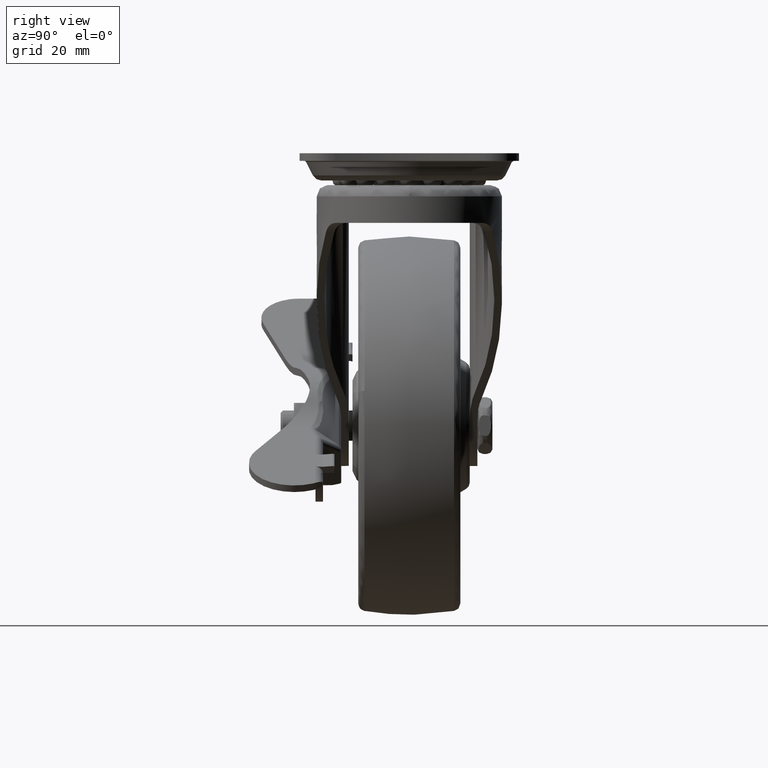
[diagram: clean part render]
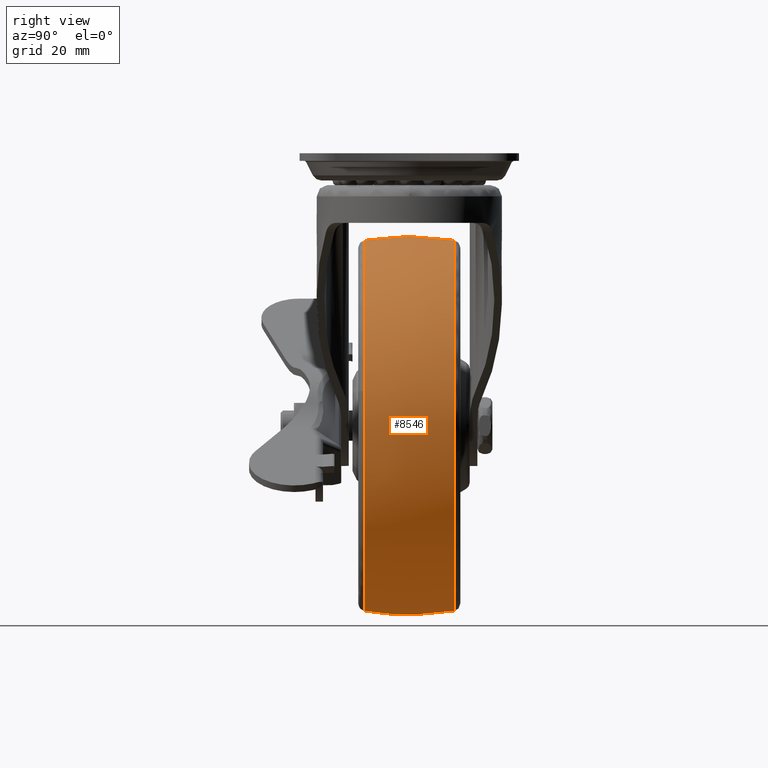
[diagram: same view with one face highlighted and labeled with its STEP entity id]
A machine part, right view. The second image highlights one B-rep face of the part: STEP entity #8546.
In plain terms, the highlighted face is a freeform B-spline surface patch.
Its self-contained STEP definition (entity closure, byte-faithful):
#8088=CARTESIAN_POINT('',(16.123932526321649,-11.838215256619501,-60.819868899651702));
#8089=VERTEX_POINT('',#8088);
#8100=CARTESIAN_POINT('',(-32.0,-11.838233890880700,-21.008288770716710));
#8101=VERTEX_POINT('',#8100);
#8102=CARTESIAN_POINT('',(-32.0,-11.838233890880700,-21.008288770716710));
#8103=CARTESIAN_POINT('',(-29.619184763803091,-11.838233890940099,-21.008161835103671));
#8104=CARTESIAN_POINT('',(-25.122118238568859,-11.838233737123350,-21.336787075046999));
#8105=CARTESIAN_POINT('',(-17.949827778257941,-11.838233019659400,-22.869628828661838));
#8106=CARTESIAN_POINT('',(-11.410308559770190,-11.838231861288680,-25.344455653658919));
#8107=CARTESIAN_POINT('',(-5.088591165053131,-11.838230205081690,-28.882895644407469));
#8108=CARTESIAN_POINT('',(0.633189689525816,-11.838228189258491,-33.189646086615411));
#8109=CARTESIAN_POINT('',(5.494194285720369,-11.838225837831050,-38.213404492334540));
#8110=CARTESIAN_POINT('',(9.700595301894166,-11.838223129296081,-44.000115788534060));
#8111=CARTESIAN_POINT('',(13.556078941229799,-11.838219775164610,-51.166121668634702));
#8112=CARTESIAN_POINT('',(15.430706597005759,-11.838216959475609,-57.181765403239922));
#8113=CARTESIAN_POINT('',(16.123932526321649,-11.838215256619501,-60.819868899651702));
#8114=B_SPLINE_CURVE_WITH_KNOTS('',3,(#8102,#8103,#8104,#8105,#8106,#8107,#8108,#8109,#8110,#8111,#8112,#8113),.UNSPECIFIED.,.F.,.U.,(4,1,1,1,1,1,1,1,1,4),(0.000000107710775,7.142433306696454,13.491359413798550,21.956563025939630,28.040879352111560,35.183345193590263,43.383987906265759,48.939264703763833,56.610856519450643,67.721361440620655),.UNSPECIFIED.);
#8115=EDGE_CURVE('',#8101,#8089,#8114,.T.);
#8117=CARTESIAN_POINT('',(-80.664045225780853,-11.838193128552490,-75.656779717032805));
#8118=VERTEX_POINT('',#8117);
#8119=CARTESIAN_POINT('',(-80.664045225780853,-11.838193128552490,-75.656779717032805));
#8120=CARTESIAN_POINT('',(-80.875242348352472,-11.838193806082870,-73.840080448965523));
#8121=CARTESIAN_POINT('',(-81.132539255926631,-11.838195500649171,-69.537605023761799));
#8122=CARTESIAN_POINT('',(-80.612532678428053,-11.838198692828160,-62.327389373035579));
#8123=CARTESIAN_POINT('',(-78.915151735993874,-11.838202248227160,-55.292517267360097));
#8124=CARTESIAN_POINT('',(-76.105686791335245,-11.838206201140890,-48.292411428705307));
#8125=CARTESIAN_POINT('',(-72.867896341002265,-11.838209735146730,-42.680686279276948));
#8126=CARTESIAN_POINT('',(-68.546148908598269,-11.838213629100720,-37.168980158243720));
#8127=CARTESIAN_POINT('',(-63.472043979905877,-11.838217586315160,-32.175181809511713));
#8128=CARTESIAN_POINT('',(-57.829782295864419,-11.838221337966100,-28.181447023764939));
#8129=CARTESIAN_POINT('',(-51.994287574135818,-11.838224756209620,-25.161222840096599));
#8130=CARTESIAN_POINT('',(-46.356773699768119,-11.838227742601701,-23.002772252345149));
#8131=CARTESIAN_POINT('',(-39.530896310538687,-11.838230937875100,-21.400444847661529));
#8132=CARTESIAN_POINT('',(-34.582044847686703,-11.838232934421740,-21.008110156978379));
#8133=CARTESIAN_POINT('',(-32.0,-11.838233890880700,-21.008288770716710));
#8134=B_SPLINE_CURVE_WITH_KNOTS('',3,(#8119,#8120,#8121,#8122,#8123,#8124,#8125,#8126,#8127,#8128,#8129,#8130,#8131,#8132,#8133),.UNSPECIFIED.,.F.,.U.,(4,1,1,1,1,1,1,1,1,1,1,1,4),(0.000000162141305,5.486821297713973,12.910234084080731,21.624667609503749,27.111551182365350,35.503185759204527,40.990116789369857,48.090663688883971,56.805074535718788,61.646426287595453,67.778827943044774,74.879463284102627,82.625578288287073),.UNSPECIFIED.);
#8135=EDGE_CURVE('',#8118,#8101,#8134,.T.);
#8137=CARTESIAN_POINT('',(-32.0,-11.838188120240501,-118.991719083000500));
#8138=VERTEX_POINT('',#8137);
#8154=CARTESIAN_POINT('',(-14.561337316346631,-11.838189308150540,-115.782980791147300));
#8155=VERTEX_POINT('',#8154);
#8156=CARTESIAN_POINT('',(-14.561337316346631,-11.838189308150540,-115.782980791147300));
#8157=CARTESIAN_POINT('',(-16.991144316425249,-11.838188920580960,-116.708679521122510));
#8158=CARTESIAN_POINT('',(-22.713944837562050,-11.838188243524000,-118.380762685201600));
#8159=CARTESIAN_POINT('',(-28.656895503161529,-11.838188062316799,-118.992279018558410));
#8160=CARTESIAN_POINT('',(-32.0,-11.838188120240501,-118.991719083000500));
#8161=B_SPLINE_CURVE_WITH_KNOTS('',3,(#8156,#8157,#8158,#8159,#8160),.UNSPECIFIED.,.F.,.U.,(4,1,4),(7.410815E-009,7.800496847856916,17.829667537271149),.UNSPECIFIED.);
#8162=EDGE_CURVE('',#8155,#8138,#8161,.T.);
#8211=CARTESIAN_POINT('',(16.123932526321649,-11.838215256619501,-60.819868899651702));
#8212=CARTESIAN_POINT('',(16.641213143206450,-11.838213981296430,-63.530329739636073));
#8213=CARTESIAN_POINT('',(17.076746083101490,-11.838212015728089,-67.706149890815752));
#8214=CARTESIAN_POINT('',(16.920148329825640,-11.838208953365360,-74.208333031753455));
#8215=CARTESIAN_POINT('',(16.168444922449080,-11.838206412932960,-79.599525575667883));
#8216=CARTESIAN_POINT('',(14.511264494790970,-11.838203489773351,-85.799357348627595));
#8217=CARTESIAN_POINT('',(11.786158106333129,-11.838200330568920,-92.495620991566284));
#8218=CARTESIAN_POINT('',(7.777692000299152,-11.838197281119889,-98.953042483066923));
#8219=CARTESIAN_POINT('',(2.407010776692997,-11.838194348413071,-105.156431754939900));
#8220=CARTESIAN_POINT('',(-4.555858498248170,-11.838191561162571,-111.043778824357300));
#8221=CARTESIAN_POINT('',(-10.817733492182770,-11.838189987101190,-114.358089828166800));
#8222=CARTESIAN_POINT('',(-14.561337316346631,-11.838189308150540,-115.782980791147300));
#8223=B_SPLINE_CURVE_WITH_KNOTS('',3,(#8211,#8212,#8213,#8214,#8215,#8216,#8217,#8218,#8219,#8220,#8221,#8222),.UNSPECIFIED.,.F.,.U.,(4,1,1,1,1,1,1,1,1,4),(0.000000112842500,8.278097203272424,12.550670171656281,19.493618371295220,24.567295591202200,31.777328306437411,41.123481275572118,47.265315766097054,56.344567209697338,68.361166547059426),.UNSPECIFIED.);
#8224=EDGE_CURVE('',#8089,#8155,#8223,.T.);
#8259=CARTESIAN_POINT('',(-19.096822078423319,11.838234922476101,-22.738013914364810));
#8260=VERTEX_POINT('',#8259);
#8261=CARTESIAN_POINT('',(-32.0,11.838215793195610,-118.991711150159300));
#8262=VERTEX_POINT('',#8261);
#8263=CARTESIAN_POINT('',(-19.096822078423319,11.838234922476101,-22.738013914364810));
#8264=CARTESIAN_POINT('',(-16.177397573735039,11.838234763757169,-23.534734861174108));
#8265=CARTESIAN_POINT('',(-10.228380245450261,11.838234318983821,-25.768772945522329));
#8266=CARTESIAN_POINT('',(-3.168805072129722,11.838233452302040,-30.124865305360981));
#8267=CARTESIAN_POINT('',(1.972966893548354,11.838232567851639,-34.571570051235938));
#8268=CARTESIAN_POINT('',(6.045834669580466,11.838231700474971,-38.933046246160458));
#8269=CARTESIAN_POINT('',(9.502133957799368,11.838230753148411,-43.697165088088433));
#8270=CARTESIAN_POINT('',(12.428872368217601,11.838229676873580,-49.110400301771840));
#8271=CARTESIAN_POINT('',(14.421386042362750,11.838228694679900,-54.050871652740277));
#8272=CARTESIAN_POINT('',(16.001508019819461,11.838227588474430,-59.615548729198252));
#8273=CARTESIAN_POINT('',(16.929521635565941,11.838226415130160,-65.518431130533244));
#8274=CARTESIAN_POINT('',(17.090224036557512,11.838225082435860,-72.223543724418505));
#8275=CARTESIAN_POINT('',(16.297416936687871,11.838223665834899,-79.351414600852991));
#8276=CARTESIAN_POINT('',(14.493855982723920,11.838222360868290,-85.918264585315640));
#8277=CARTESIAN_POINT('',(12.082156546562651,11.838221236321980,-91.577739767012403));
#8278=CARTESIAN_POINT('',(9.230177295614247,11.838220215285171,-96.716706152201823));
#8279=CARTESIAN_POINT('',(5.625619392419234,11.838219245109510,-101.600248620895000));
#8280=CARTESIAN_POINT('',(0.649808379800754,11.838218221299639,-106.754508738124500));
#8281=CARTESIAN_POINT('',(-4.586661875500887,11.838217414505490,-110.817057977324000));
#8282=CARTESIAN_POINT('',(-10.186899377236800,11.838216787094710,-113.977301334847790));
#8283=CARTESIAN_POINT('',(-15.673929515470221,11.838216321130499,-116.325185254120500));
#8284=CARTESIAN_POINT('',(-22.829951163508159,11.838215911825960,-118.389048104174290));
#8285=CARTESIAN_POINT('',(-28.606977418145110,11.838215792664100,-118.992239924959090));
#8286=CARTESIAN_POINT('',(-32.0,11.838215793195610,-118.991711150159300));
#8287=B_SPLINE_CURVE_WITH_KNOTS('',3,(#8263,#8264,#8265,#8266,#8267,#8268,#8269,#8270,#8271,#8272,#8273,#8274,#8275,#8276,#8277,#8278,#8279,#8280,#8281,#8282,#8283,#8284,#8285,#8286),.UNSPECIFIED.,.F.,.U.,(4,1,1,1,1,1,1,1,1,1,1,1,1,1,1,1,1,1,1,1,1,4),(0.000000384912710,9.078531705369699,18.982317682899460,24.759657950980749,29.436487442613650,36.864392269128437,42.366546584020497,47.868696759719647,52.820645729330472,59.698424636871863,65.750789954099403,72.903408196545442,81.156659821362311,86.108576315956043,91.335559129146191,98.763500116278891,104.265681159710700,112.794056812786910,118.571288243996190,123.523232526141900,130.675998341231410,140.854963548833690),.UNSPECIFIED.);
#8288=EDGE_CURVE('',#8260,#8262,#8287,.T.);
#8290=CARTESIAN_POINT('',(-80.664041683705534,11.838201460569289,-75.656779420158955));
#8291=VERTEX_POINT('',#8290);
#8308=CARTESIAN_POINT('',(-80.435742125410371,11.838205887466909,-62.640191114683802));
#8309=VERTEX_POINT('',#8308);
#8310=CARTESIAN_POINT('',(-80.664041683705534,11.838201460569289,-75.656779420158955));
#8311=CARTESIAN_POINT('',(-81.167643267970050,11.838202839128661,-71.333493055989109));
#8312=CARTESIAN_POINT('',(-81.090194727712230,11.838204332333500,-66.943169470343406));
#8313=CARTESIAN_POINT('',(-80.435742125410371,11.838205887466909,-62.640191114683802));
#8314=B_SPLINE_CURVE_WITH_KNOTS('',3,(#8310,#8311,#8312,#8313),.UNSPECIFIED.,.F.,.U.,(4,4),(3.940766E-009,13.057238801090090),.UNSPECIFIED.);
#8315=EDGE_CURVE('',#8291,#8309,#8314,.T.);
#8412=CARTESIAN_POINT('',(-32.0,11.838235254025140,-21.008293250591912));
#8413=VERTEX_POINT('',#8412);
#8414=CARTESIAN_POINT('',(-32.0,11.838235254025140,-21.008293250591912));
#8415=CARTESIAN_POINT('',(-27.647479507120480,11.838235254222120,-21.007266199678220));
#8416=CARTESIAN_POINT('',(-23.295453455901921,11.838235142322180,-21.591056947276801));
#8417=CARTESIAN_POINT('',(-19.096822078423319,11.838234922476101,-22.738013914364810));
#8418=B_SPLINE_CURVE_WITH_KNOTS('',3,(#8414,#8415,#8416,#8417),.UNSPECIFIED.,.F.,.U.,(4,4),(3.940174E-009,13.057248117228360),.UNSPECIFIED.);
#8419=EDGE_CURVE('',#8413,#8260,#8418,.T.);
#8448=CARTESIAN_POINT('',(-80.435742125410371,11.838205887466909,-62.640191114683802));
#8449=CARTESIAN_POINT('',(-79.851543222067477,11.838207407358871,-58.789059748771592));
#8450=CARTESIAN_POINT('',(-78.170663934689387,11.838210035042369,-52.722934895183883));
#8451=CARTESIAN_POINT('',(-74.692973277973692,11.838213537370351,-45.729401963690172));
#8452=CARTESIAN_POINT('',(-70.713402029518335,11.838216870960441,-39.663480332294981));
#8453=CARTESIAN_POINT('',(-65.609891515889146,11.838220421542610,-33.965855910539332));
#8454=CARTESIAN_POINT('',(-58.903208034368262,11.838224272525460,-28.819747171400930));
#8455=CARTESIAN_POINT('',(-52.045955710634722,11.838227680052150,-25.080529751853490));
#8456=CARTESIAN_POINT('',(-46.226886501769393,11.838230192609540,-22.996487335185488));
#8457=CARTESIAN_POINT('',(-39.427723273095111,11.838232828441519,-21.423067505682521));
#8458=CARTESIAN_POINT('',(-35.170467353777909,11.838234280464031,-21.007841531252179));
#8459=CARTESIAN_POINT('',(-32.0,11.838235254025140,-21.008293250591912));
#8460=B_SPLINE_CURVE_WITH_KNOTS('',3,(#8448,#8449,#8450,#8451,#8452,#8453,#8454,#8455,#8456,#8457,#8458,#8459),.UNSPECIFIED.,.F.,.U.,(4,1,1,1,1,1,1,1,1,4),(0.000000115222619,11.685279695341560,18.750842130785831,23.370633700476681,33.425417052680373,41.577934175868243,48.643448561277140,56.796003800376852,60.057030123494663,69.568309824712117),.UNSPECIFIED.);
#8461=EDGE_CURVE('',#8309,#8413,#8460,.T.);
#8466=CARTESIAN_POINT('',(-80.448962351836286,13.037387606463096,-75.631788331223788));
#8467=CARTESIAN_POINT('',(-81.665582081654208,6.576226944414428,-75.773210241318978));
#8468=CARTESIAN_POINT('',(-81.665582081654222,-9.184548E-015,-75.773210241318964));
#8469=CARTESIAN_POINT('',(-81.665582081654208,-6.576226944414442,-75.773210241318978));
#8470=CARTESIAN_POINT('',(-80.448962351836286,-13.037387606463108,-75.631788331223788));
#8471=CARTESIAN_POINT('',(-80.775188290537159,13.037387606463099,-72.825342617579750));
#8472=CARTESIAN_POINT('',(-81.999999999999972,6.576226944414425,-72.896290836183070));
#8473=CARTESIAN_POINT('',(-81.999999999999986,-9.184548E-015,-72.896290836183084));
#8474=CARTESIAN_POINT('',(-81.999999999999972,-6.576226944414440,-72.896290836183070));
#8475=CARTESIAN_POINT('',(-80.775188290537159,-13.037387606463110,-72.825342617579750));
#8476=CARTESIAN_POINT('',(-80.775188290537173,13.037387606463101,-69.999999999999986));
#8477=CARTESIAN_POINT('',(-82.0,6.576226944414427,-70.0));
#8478=CARTESIAN_POINT('',(-82.0,-9.184548E-015,-70.0));
#8479=CARTESIAN_POINT('',(-82.0,-6.576226944414442,-70.0));
#8480=CARTESIAN_POINT('',(-80.775188290537173,-13.037387606463112,-69.999999999999986));
#8481=CARTESIAN_POINT('',(-80.775188290537159,13.037387606463097,-21.224811709462820));
#8482=CARTESIAN_POINT('',(-82.000000000000028,6.576226944414428,-19.999999999999996));
#8483=CARTESIAN_POINT('',(-82.0,-9.184548E-015,-19.999999999999996));
#8484=CARTESIAN_POINT('',(-82.000000000000028,-6.576226944414444,-19.999999999999996));
#8485=CARTESIAN_POINT('',(-80.775188290537159,-13.037387606463110,-21.224811709462820));
#8486=CARTESIAN_POINT('',(-32.0,13.037387606463101,-21.224811709462823));
#8487=CARTESIAN_POINT('',(-31.999999999999996,6.576226944414427,-20.0));
#8488=CARTESIAN_POINT('',(-32.0,-9.184548E-015,-20.0));
#8489=CARTESIAN_POINT('',(-31.999999999999996,-6.576226944414442,-20.0));
#8490=CARTESIAN_POINT('',(-32.0,-13.037387606463112,-21.224811709462823));
#8491=CARTESIAN_POINT('',(16.775188290537184,13.037387606463097,-21.224811709462820));
#8492=CARTESIAN_POINT('',(18.0,6.576226944414428,-19.999999999999996));
#8493=CARTESIAN_POINT('',(18.000000000000007,-9.184548E-015,-19.999999999999996));
#8494=CARTESIAN_POINT('',(18.0,-6.576226944414444,-19.999999999999996));
#8495=CARTESIAN_POINT('',(16.775188290537184,-13.037387606463110,-21.224811709462820));
#8496=CARTESIAN_POINT('',(16.775188290537191,13.037387606463101,-69.999999999999986));
#8497=CARTESIAN_POINT('',(18.000000000000007,6.576226944414427,-70.0));
#8498=CARTESIAN_POINT('',(18.0,-9.184548E-015,-70.0));
#8499=CARTESIAN_POINT('',(18.000000000000007,-6.576226944414442,-70.0));
#8500=CARTESIAN_POINT('',(16.775188290537191,-13.037387606463112,-69.999999999999986));
#8501=CARTESIAN_POINT('',(16.775188290537184,13.037387606463097,-118.775188290537170));
#8502=CARTESIAN_POINT('',(18.0,6.576226944414428,-120.0));
#8503=CARTESIAN_POINT('',(18.000000000000007,-9.184548E-015,-120.0));
#8504=CARTESIAN_POINT('',(18.0,-6.576226944414444,-120.0));
#8505=CARTESIAN_POINT('',(16.775188290537184,-13.037387606463110,-118.775188290537200));
#8506=CARTESIAN_POINT('',(-32.0,13.037387606463101,-118.775188290537140));
#8507=CARTESIAN_POINT('',(-31.999999999999996,6.576226944414427,-120.0));
#8508=CARTESIAN_POINT('',(-32.0,-9.184548E-015,-120.0));
#8509=CARTESIAN_POINT('',(-31.999999999999996,-6.576226944414442,-120.0));
#8510=CARTESIAN_POINT('',(-32.0,-13.037387606463112,-118.775188290537140));
#8518=(BOUNDED_SURFACE()B_SPLINE_SURFACE(2,2,((#8466,#8471,#8476,#8481,#8486,#8491,#8496,#8501,#8506),(#8467,#8472,#8477,#8482,#8487,#8492,#8497,#8502,#8507),(#8468,#8473,#8478,#8483,#8488,#8493,#8498,#8503,#8508),(#8469,#8474,#8479,#8484,#8489,#8494,#8499,#8504,#8509),(#8470,#8475,#8480,#8485,#8490,#8495,#8500,#8505,#8510)),.UNSPECIFIED.,.F.,.F.,.U.)B_SPLINE_SURFACE_WITH_KNOTS((3,2,3),(3,2,2,2,3),(0.0,13.443632255941971,26.887264511883949),(0.0,6.627415615382595,89.470128090001595,172.312840564620590,255.155553039239610),.UNSPECIFIED.)GEOMETRIC_REPRESENTATION_ITEM()RATIONAL_B_SPLINE_SURFACE(((0.907871483862923,0.926545710866897,0.948776932607286,0.670886602879984,0.948776932607286,0.670886602879984,0.948776932607286,0.670886602879984,0.948776932607286),(0.927970587684476,0.947058237991210,0.969781630310565,0.685739167062746,0.969781630310565,0.685739167062746,0.969781630310565,0.685739167062746,0.969781630310565),(0.956886126402807,0.976568547383107,1.0,0.707106781186548,1.0,0.707106781186548,1.0,0.707106781186548,1.0),(0.927970587684476,0.947058237991210,0.969781630310565,0.685739167062746,0.969781630310565,0.685739167062746,0.969781630310565,0.685739167062746,0.969781630310565),(0.907871483862923,0.926545710866897,0.948776932607286,0.670886602879984,0.948776932607286,0.670886602879984,0.948776932607286,0.670886602879984,0.948776932607286)))REPRESENTATION_ITEM('')SURFACE());
#8519=ORIENTED_EDGE('',*,*,#8135,.T.);
#8520=ORIENTED_EDGE('',*,*,#8115,.T.);
#8521=ORIENTED_EDGE('',*,*,#8224,.T.);
#8522=ORIENTED_EDGE('',*,*,#8162,.T.);
#8523=CARTESIAN_POINT('',(-32.0,11.838215793195610,-118.991711150159300));
#8524=CARTESIAN_POINT('',(-32.000000000000021,9.273591343424275,-119.431824781590190));
#8525=CARTESIAN_POINT('',(-32.000000000000163,3.971903229251263,-120.039750211517700));
#8526=CARTESIAN_POINT('',(-31.999999999999599,-3.971874223706705,-120.039719472129900));
#8527=CARTESIAN_POINT('',(-32.000000000000291,-9.273563690132953,-119.431840682298900));
#8528=CARTESIAN_POINT('',(-32.0,-11.838188120240501,-118.991719083000500));
#8529=B_SPLINE_CURVE_WITH_KNOTS('',3,(#8523,#8524,#8525,#8526,#8527,#8528),.UNSPECIFIED.,.F.,.U.,(4,1,1,4),(5.809788E-009,7.806353191079392,15.984416413910910,23.790769599180660),.UNSPECIFIED.);
#8530=EDGE_CURVE('',#8262,#8138,#8529,.T.);
#8531=ORIENTED_EDGE('',*,*,#8530,.F.);
#8532=ORIENTED_EDGE('',*,*,#8288,.F.);
#8533=ORIENTED_EDGE('',*,*,#8419,.F.);
#8534=ORIENTED_EDGE('',*,*,#8461,.F.);
#8535=ORIENTED_EDGE('',*,*,#8315,.F.);
#8536=CARTESIAN_POINT('',(-80.664041683705534,11.838201460569289,-75.656779420158955));
#8537=CARTESIAN_POINT('',(-81.267901268915111,8.296594131246536,-75.726973065173055));
#8538=CARTESIAN_POINT('',(-82.000636880372440,0.377105017127806,-75.812147456784487));
#8539=CARTESIAN_POINT('',(-81.393107857653021,-7.563859382745487,-75.741527214425332));
#8540=CARTESIAN_POINT('',(-80.664045225780853,-11.838193128552490,-75.656779717032805));
#8541=B_SPLINE_CURVE_WITH_KNOTS('',3,(#8536,#8537,#8538,#8539,#8540),.UNSPECIFIED.,.F.,.U.,(4,1,4),(5.807831E-009,10.780192388751351,23.790760135122671),.UNSPECIFIED.);
#8542=EDGE_CURVE('',#8291,#8118,#8541,.T.);
#8543=ORIENTED_EDGE('',*,*,#8542,.T.);
#8544=EDGE_LOOP('',(#8519,#8520,#8521,#8522,#8531,#8532,#8533,#8534,#8535,#8543));
#8545=FACE_OUTER_BOUND('',#8544,.T.);
#8546=ADVANCED_FACE('',(#8545),#8518,.T.);